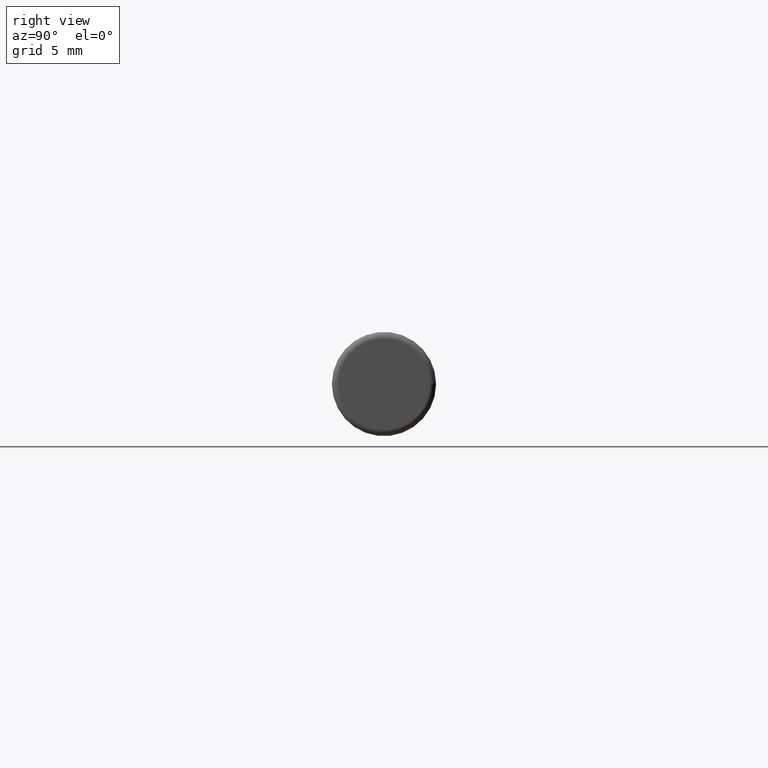
[diagram: clean part render]
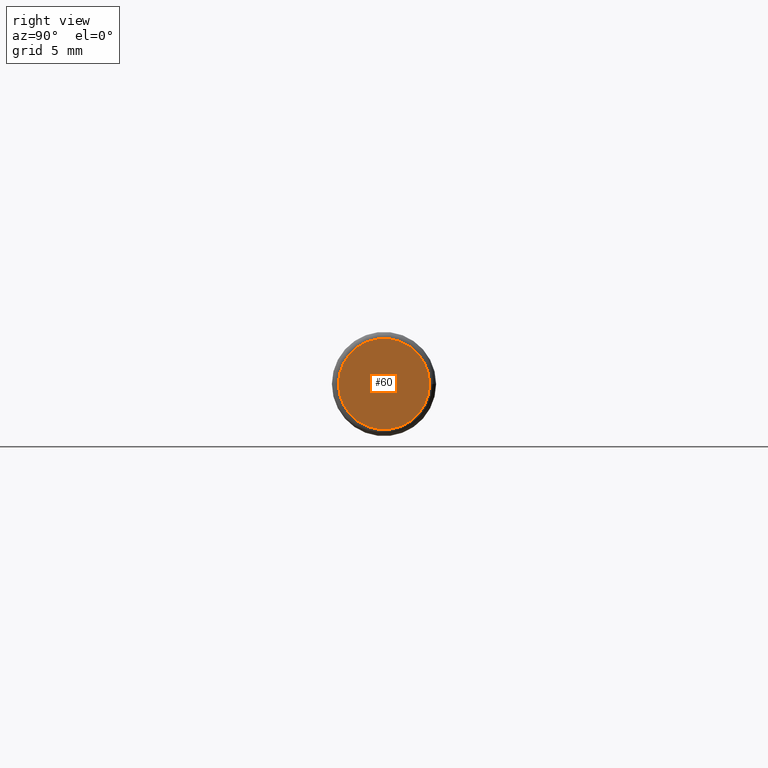
[diagram: same view with one face highlighted and labeled with its STEP entity id]
A machine part, right view. The second image highlights one B-rep face of the part: STEP entity #60.
In plain terms, the highlighted planar face has unit normal (1, 0, 0).
Its self-contained STEP definition (entity closure, byte-faithful):
#16=PLANE('',#71);
#25=FACE_OUTER_BOUND('',#33,.T.);
#33=EDGE_LOOP('',(#53));
#37=CIRCLE('',#70,3.5);
#41=VERTEX_POINT('',#103);
#45=EDGE_CURVE('',#41,#41,#37,.T.);
#53=ORIENTED_EDGE('',*,*,#45,.F.);
#60=ADVANCED_FACE('',(#25),#16,.T.);
#70=AXIS2_PLACEMENT_3D('',#104,#88,#89);
#71=AXIS2_PLACEMENT_3D('',#105,#90,#91);
#88=DIRECTION('center_axis',(-1.,0.,0.));
#89=DIRECTION('ref_axis',(0.,-1.,1.22464679914735E-16));
#90=DIRECTION('center_axis',(1.,0.,0.));
#91=DIRECTION('ref_axis',(0.,0.,-1.));
#103=CARTESIAN_POINT('',(55.,3.5,-8.57252759403147E-16));
#104=CARTESIAN_POINT('Origin',(55.,0.,0.));
#105=CARTESIAN_POINT('Origin',(55.,2.,0.));